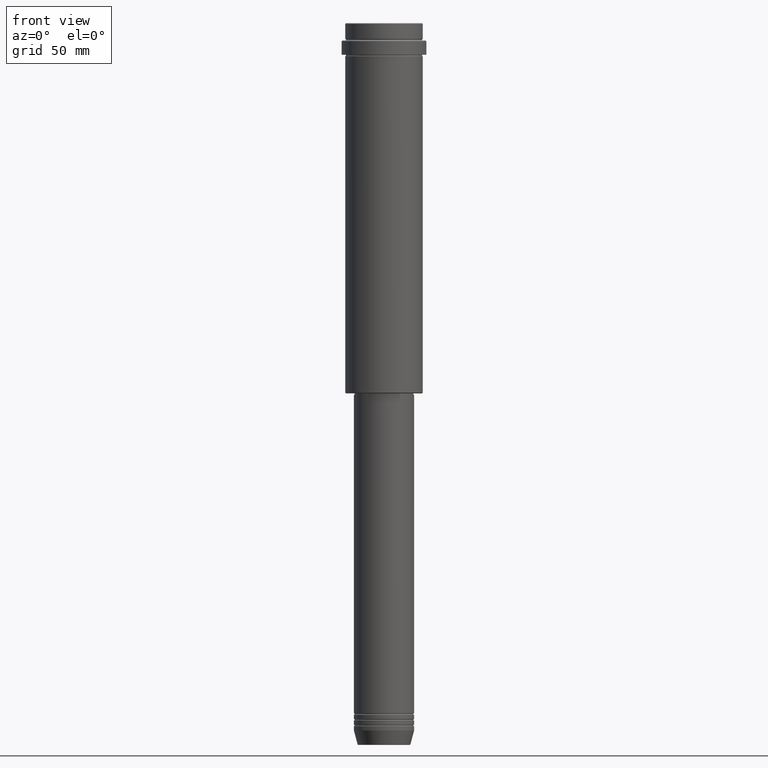
[diagram: clean part render]
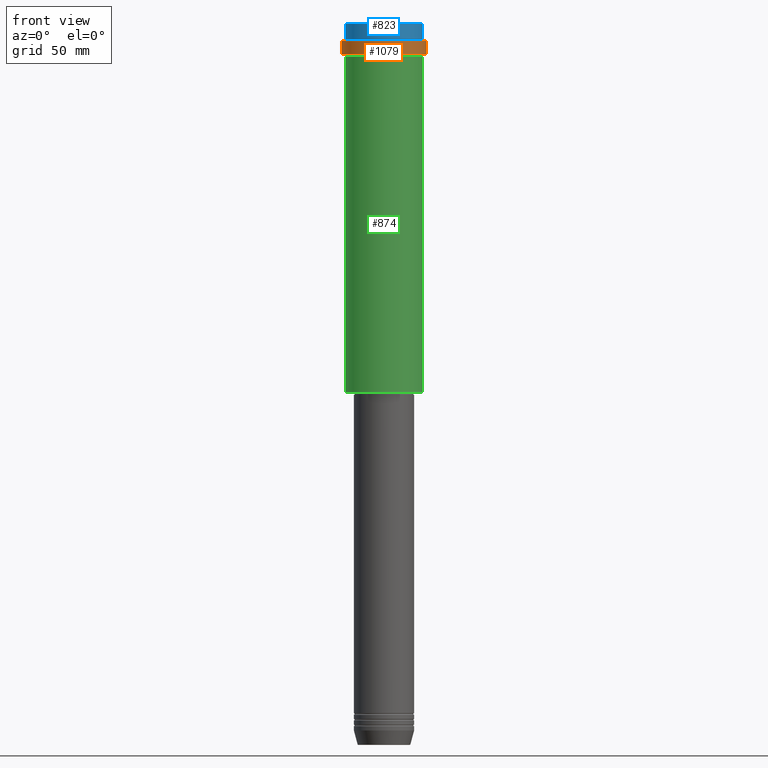
[diagram: same view with three faces highlighted in distinct colors, each labeled with its STEP entity id]
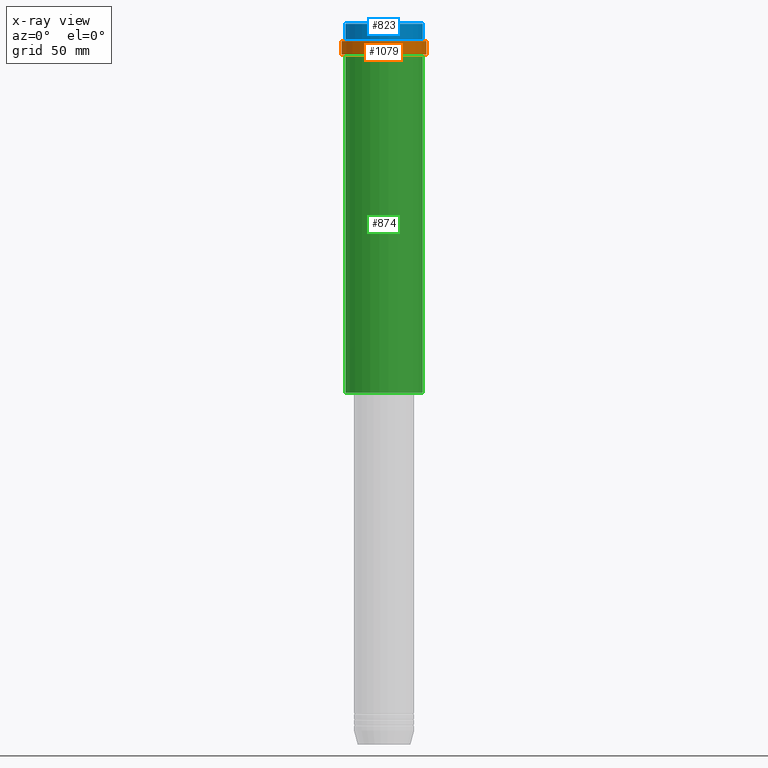
[diagram: x-ray of the same camera — body ghosted, the three highlighted faces saturated]
A machine part, front view with three faces highlighted in distinct colors.
The next image is the same camera in x-ray (body ghosted, the three faces saturated) — at least one of them is partly hidden behind the body in this view.
Their STEP definitions:

[orange] entity #1079 — the highlighted cylindrical surface (partial cylindrical patch) has radius 29.5 mm, axis along (-0, -0, 1).
#18 = EDGE_CURVE ( 'NONE', #23, #253, #1337, .T. ) ;
#20 = CARTESIAN_POINT ( 'NONE',  ( 0.000000000000000000, 0.000000000000000000, -22.00000000000000711 ) ) ;
#23 = VERTEX_POINT ( 'NONE', #51 ) ;
#39 = ORIENTED_EDGE ( 'NONE', *, *, #18, .T. ) ;
#41 = CYLINDRICAL_SURFACE ( 'NONE', #907, 29.50000000000000000 ) ;
#51 = CARTESIAN_POINT ( 'NONE',  ( 29.49999999999999645, 0.000000000000000000, -22.00000000000000711 ) ) ;
#181 = DIRECTION ( 'NONE',  ( 0.000000000000000000, 0.000000000000000000, -1.000000000000000000 ) ) ;
#201 = DIRECTION ( 'NONE',  ( -0.000000000000000000, -0.000000000000000000, 1.000000000000000000 ) ) ;
#252 = DIRECTION ( 'NONE',  ( -0.000000000000000000, -0.000000000000000000, 1.000000000000000000 ) ) ;
#253 = VERTEX_POINT ( 'NONE', #969 ) ;
#260 = DIRECTION ( 'NONE',  ( -0.000000000000000000, -0.000000000000000000, 1.000000000000000000 ) ) ;
#269 = AXIS2_PLACEMENT_3D ( 'NONE', #20, #252, #687 ) ;
#297 = CARTESIAN_POINT ( 'NONE',  ( -29.50000000000000000, 3.612708057484691604E-15, 0.000000000000000000 ) ) ;
#386 = FACE_OUTER_BOUND ( 'NONE', #753, .T. ) ;
#427 = VERTEX_POINT ( 'NONE', #1296 ) ;
#459 = CIRCLE ( 'NONE', #269, 29.49999999999999645 ) ;
#465 = ORIENTED_EDGE ( 'NONE', *, *, #1100, .T. ) ;
#687 = DIRECTION ( 'NONE',  ( 1.000000000000000000, 0.000000000000000000, 0.000000000000000000 ) ) ;
#700 = CARTESIAN_POINT ( 'NONE',  ( 0.000000000000000000, 0.000000000000000000, 0.000000000000000000 ) ) ;
#753 = EDGE_LOOP ( 'NONE', ( #772, #465, #39, #1138 ) ) ;
#772 = ORIENTED_EDGE ( 'NONE', *, *, #1388, .F. ) ;
#782 = EDGE_CURVE ( 'NONE', #253, #427, #868, .T. ) ;
#804 = CARTESIAN_POINT ( 'NONE',  ( 29.50000000000000000, 0.000000000000000000, 0.000000000000000000 ) ) ;
#846 = CARTESIAN_POINT ( 'NONE',  ( 0.000000000000000000, 0.000000000000000000, -12.50000000000000355 ) ) ;
#847 = VECTOR ( 'NONE', #201, 1000.000000000000000 ) ;
#868 = CIRCLE ( 'NONE', #1412, 29.50000000000000000 ) ;
#907 = AXIS2_PLACEMENT_3D ( 'NONE', #700, #1245, #1322 ) ;
#909 = CARTESIAN_POINT ( 'NONE',  ( -29.49999999999999645, 3.612708057484690815E-15, -22.00000000000000711 ) ) ;
#969 = CARTESIAN_POINT ( 'NONE',  ( 29.50000000000000000, 0.000000000000000000, -12.50000000000000355 ) ) ;
#1079 = ADVANCED_FACE ( 'NONE', ( #386 ), #41, .T. ) ;
#1087 = VERTEX_POINT ( 'NONE', #909 ) ;
#1100 = EDGE_CURVE ( 'NONE', #1087, #23, #459, .T. ) ;
#1138 = ORIENTED_EDGE ( 'NONE', *, *, #782, .T. ) ;
#1172 = DIRECTION ( 'NONE',  ( 1.000000000000000000, 0.000000000000000000, 0.000000000000000000 ) ) ;
#1245 = DIRECTION ( 'NONE',  ( -0.000000000000000000, -0.000000000000000000, 1.000000000000000000 ) ) ;
#1263 = LINE ( 'NONE', #297, #847 ) ;
#1296 = CARTESIAN_POINT ( 'NONE',  ( -29.50000000000000000, 3.612708057484691604E-15, -12.50000000000000355 ) ) ;
#1307 = VECTOR ( 'NONE', #260, 1000.000000000000000 ) ;
#1322 = DIRECTION ( 'NONE',  ( 1.000000000000000000, 0.000000000000000000, 0.000000000000000000 ) ) ;
#1337 = LINE ( 'NONE', #804, #1307 ) ;
#1388 = EDGE_CURVE ( 'NONE', #1087, #427, #1263, .T. ) ;
#1412 = AXIS2_PLACEMENT_3D ( 'NONE', #846, #181, #1172 ) ;

[blue] entity #823 — the highlighted cylindrical surface (partial cylindrical patch) has radius 27 mm, axis along (-0, -0, 1).
#8 = VERTEX_POINT ( 'NONE', #688 ) ;
#35 = VECTOR ( 'NONE', #603, 1000.000000000000000 ) ;
#66 = CARTESIAN_POINT ( 'NONE',  ( 0.000000000000000000, 0.000000000000000000, 0.000000000000000000 ) ) ;
#76 = EDGE_CURVE ( 'NONE', #1346, #8, #1127, .T. ) ;
#95 = ORIENTED_EDGE ( 'NONE', *, *, #834, .T. ) ;
#137 = CARTESIAN_POINT ( 'NONE',  ( 27.00000000000000355, 0.000000000000000000, 0.000000000000000000 ) ) ;
#174 = AXIS2_PLACEMENT_3D ( 'NONE', #892, #1211, #1414 ) ;
#194 = CARTESIAN_POINT ( 'NONE',  ( 27.00000000000000355, 0.000000000000000000, -11.00000000000000178 ) ) ;
#246 = AXIS2_PLACEMENT_3D ( 'NONE', #66, #1368, #768 ) ;
#248 = ORIENTED_EDGE ( 'NONE', *, *, #76, .F. ) ;
#307 = ORIENTED_EDGE ( 'NONE', *, *, #539, .T. ) ;
#314 = VERTEX_POINT ( 'NONE', #1266 ) ;
#357 = VERTEX_POINT ( 'NONE', #194 ) ;
#504 = CARTESIAN_POINT ( 'NONE',  ( -27.00000000000000355, 3.306546357697854128E-15, 0.000000000000000000 ) ) ;
#539 = EDGE_CURVE ( 'NONE', #357, #314, #1223, .T. ) ;
#554 = AXIS2_PLACEMENT_3D ( 'NONE', #750, #1287, #1183 ) ;
#603 = DIRECTION ( 'NONE',  ( -0.000000000000000000, -0.000000000000000000, 1.000000000000000000 ) ) ;
#609 = EDGE_LOOP ( 'NONE', ( #248, #95, #307, #899 ) ) ;
#618 = CYLINDRICAL_SURFACE ( 'NONE', #246, 27.00000000000000355 ) ;
#682 = VECTOR ( 'NONE', #910, 1000.000000000000000 ) ;
#688 = CARTESIAN_POINT ( 'NONE',  ( -27.00000000000000355, 3.306546357697854128E-15, -0.4999999999999796274 ) ) ;
#746 = EDGE_CURVE ( 'NONE', #314, #8, #1179, .T. ) ;
#750 = CARTESIAN_POINT ( 'NONE',  ( 0.000000000000000000, 0.000000000000000000, -0.4999999999999796274 ) ) ;
#768 = DIRECTION ( 'NONE',  ( 1.000000000000000000, 0.000000000000000000, 0.000000000000000000 ) ) ;
#796 = CIRCLE ( 'NONE', #174, 27.00000000000000355 ) ;
#823 = ADVANCED_FACE ( 'NONE', ( #1147 ), #618, .T. ) ;
#834 = EDGE_CURVE ( 'NONE', #1346, #357, #796, .T. ) ;
#892 = CARTESIAN_POINT ( 'NONE',  ( 0.000000000000000000, 0.000000000000000000, -11.00000000000000178 ) ) ;
#899 = ORIENTED_EDGE ( 'NONE', *, *, #746, .T. ) ;
#910 = DIRECTION ( 'NONE',  ( -0.000000000000000000, -0.000000000000000000, 1.000000000000000000 ) ) ;
#1127 = LINE ( 'NONE', #504, #682 ) ;
#1147 = FACE_OUTER_BOUND ( 'NONE', #609, .T. ) ;
#1166 = CARTESIAN_POINT ( 'NONE',  ( -27.00000000000000355, 3.306546357697854128E-15, -11.00000000000000178 ) ) ;
#1179 = CIRCLE ( 'NONE', #554, 27.00000000000000355 ) ;
#1183 = DIRECTION ( 'NONE',  ( 1.000000000000000000, 0.000000000000000000, 0.000000000000000000 ) ) ;
#1211 = DIRECTION ( 'NONE',  ( -0.000000000000000000, -0.000000000000000000, 1.000000000000000000 ) ) ;
#1223 = LINE ( 'NONE', #137, #35 ) ;
#1266 = CARTESIAN_POINT ( 'NONE',  ( 27.00000000000000355, 0.000000000000000000, -0.4999999999999796274 ) ) ;
#1287 = DIRECTION ( 'NONE',  ( 0.000000000000000000, 0.000000000000000000, -1.000000000000000000 ) ) ;
#1346 = VERTEX_POINT ( 'NONE', #1166 ) ;
#1368 = DIRECTION ( 'NONE',  ( -0.000000000000000000, -0.000000000000000000, 1.000000000000000000 ) ) ;
#1414 = DIRECTION ( 'NONE',  ( 1.000000000000000000, 0.000000000000000000, 0.000000000000000000 ) ) ;

[green] entity #874 — the highlighted cylindrical surface (partial cylindrical patch) has radius 27 mm, axis along (-0, -0, 1).
#2 = CARTESIAN_POINT ( 'NONE',  ( -27.00000000000000355, 3.306546357697854128E-15, -257.5000000000000568 ) ) ;
#47 = ORIENTED_EDGE ( 'NONE', *, *, #567, .F. ) ;
#56 = VECTOR ( 'NONE', #1360, 1000.000000000000000 ) ;
#81 = CARTESIAN_POINT ( 'NONE',  ( 27.00000000000000355, 0.000000000000000000, 0.000000000000000000 ) ) ;
#125 = VECTOR ( 'NONE', #198, 1000.000000000000000 ) ;
#160 = CARTESIAN_POINT ( 'NONE',  ( 27.00000000000000355, 0.000000000000000000, -23.00000000000001421 ) ) ;
#198 = DIRECTION ( 'NONE',  ( -0.000000000000000000, -0.000000000000000000, 1.000000000000000000 ) ) ;
#212 = VERTEX_POINT ( 'NONE', #1059 ) ;
#232 = CYLINDRICAL_SURFACE ( 'NONE', #667, 27.00000000000000355 ) ;
#341 = DIRECTION ( 'NONE',  ( -0.000000000000000000, -0.000000000000000000, 1.000000000000000000 ) ) ;
#364 = AXIS2_PLACEMENT_3D ( 'NONE', #818, #1340, #801 ) ;
#438 = FACE_OUTER_BOUND ( 'NONE', #1074, .T. ) ;
#447 = VERTEX_POINT ( 'NONE', #2 ) ;
#449 = EDGE_CURVE ( 'NONE', #447, #212, #528, .T. ) ;
#452 = CARTESIAN_POINT ( 'NONE',  ( 0.000000000000000000, 0.000000000000000000, -257.5000000000000568 ) ) ;
#526 = CARTESIAN_POINT ( 'NONE',  ( -27.00000000000000355, 3.306546357697854128E-15, -23.00000000000001421 ) ) ;
#528 = CIRCLE ( 'NONE', #613, 27.00000000000000355 ) ;
#559 = DIRECTION ( 'NONE',  ( 1.000000000000000000, 0.000000000000000000, 0.000000000000000000 ) ) ;
#564 = CARTESIAN_POINT ( 'NONE',  ( 0.000000000000000000, 0.000000000000000000, 0.000000000000000000 ) ) ;
#567 = EDGE_CURVE ( 'NONE', #1272, #1290, #664, .T. ) ;
#613 = AXIS2_PLACEMENT_3D ( 'NONE', #452, #786, #673 ) ;
#664 = CIRCLE ( 'NONE', #364, 27.00000000000000355 ) ;
#667 = AXIS2_PLACEMENT_3D ( 'NONE', #564, #341, #559 ) ;
#673 = DIRECTION ( 'NONE',  ( -1.000000000000000000, 0.000000000000000000, 0.000000000000000000 ) ) ;
#767 = EDGE_CURVE ( 'NONE', #447, #1272, #1159, .T. ) ;
#786 = DIRECTION ( 'NONE',  ( -0.000000000000000000, -0.000000000000000000, 1.000000000000000000 ) ) ;
#787 = ORIENTED_EDGE ( 'NONE', *, *, #449, .T. ) ;
#788 = EDGE_CURVE ( 'NONE', #212, #1290, #1060, .T. ) ;
#801 = DIRECTION ( 'NONE',  ( 1.000000000000000000, 0.000000000000000000, 0.000000000000000000 ) ) ;
#818 = CARTESIAN_POINT ( 'NONE',  ( 0.000000000000000000, 0.000000000000000000, -23.00000000000001421 ) ) ;
#874 = ADVANCED_FACE ( 'NONE', ( #438 ), #232, .T. ) ;
#939 = CARTESIAN_POINT ( 'NONE',  ( -27.00000000000000355, 3.306546357697854128E-15, 0.000000000000000000 ) ) ;
#1036 = ORIENTED_EDGE ( 'NONE', *, *, #767, .F. ) ;
#1059 = CARTESIAN_POINT ( 'NONE',  ( 27.00000000000000355, 0.000000000000000000, -257.5000000000000568 ) ) ;
#1060 = LINE ( 'NONE', #81, #125 ) ;
#1074 = EDGE_LOOP ( 'NONE', ( #1036, #787, #1095, #47 ) ) ;
#1095 = ORIENTED_EDGE ( 'NONE', *, *, #788, .T. ) ;
#1159 = LINE ( 'NONE', #939, #56 ) ;
#1272 = VERTEX_POINT ( 'NONE', #526 ) ;
#1290 = VERTEX_POINT ( 'NONE', #160 ) ;
#1340 = DIRECTION ( 'NONE',  ( -0.000000000000000000, -0.000000000000000000, 1.000000000000000000 ) ) ;
#1360 = DIRECTION ( 'NONE',  ( -0.000000000000000000, -0.000000000000000000, 1.000000000000000000 ) ) ;